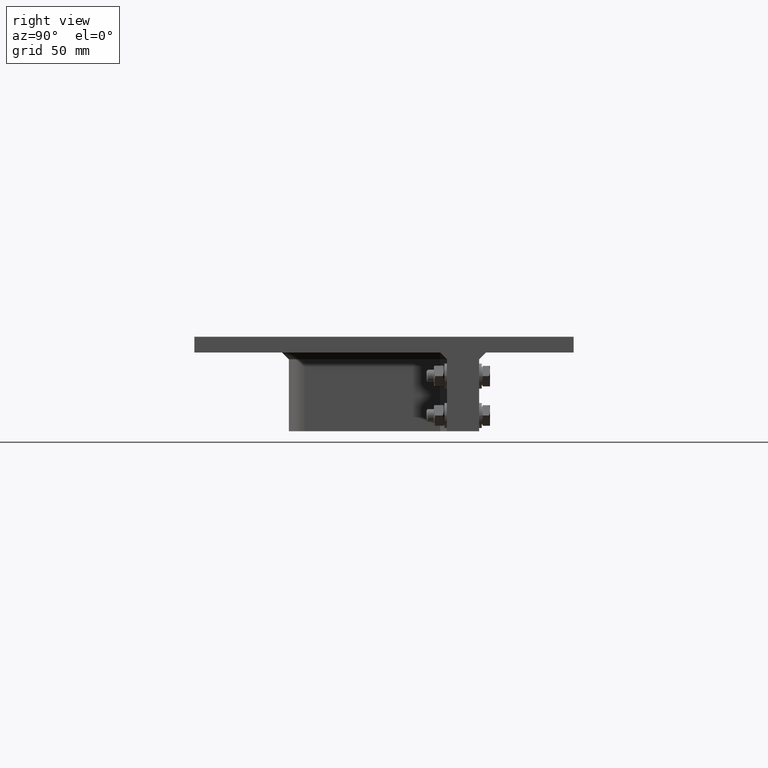
[diagram: clean part render]
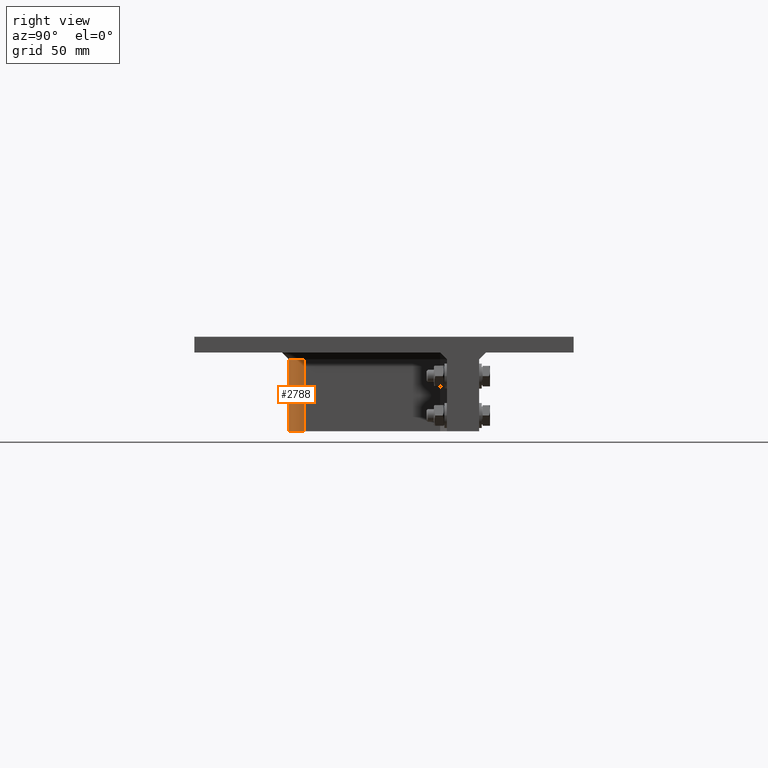
[diagram: same view with one face highlighted and labeled with its STEP entity id]
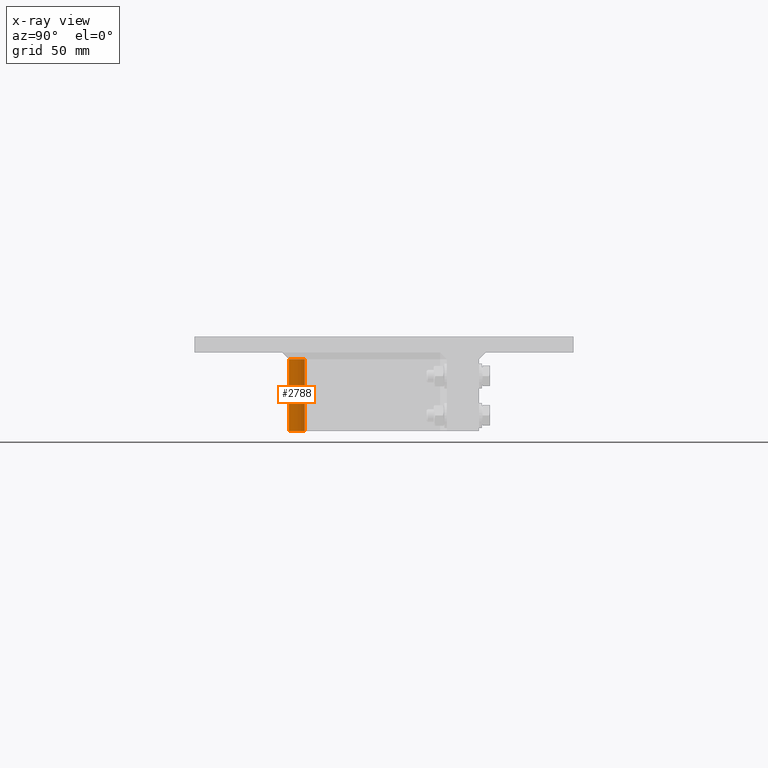
[diagram: x-ray of the same camera — body ghosted, the highlighted face saturated]
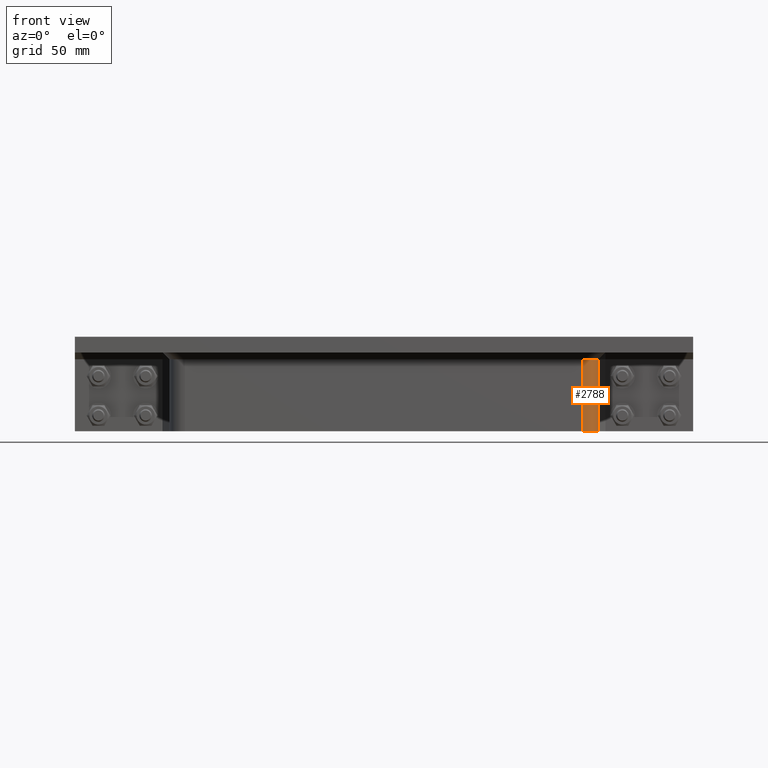
[diagram: same view with one face highlighted and labeled with its STEP entity id]
A machine part, right view. The second image highlights one B-rep face of the part: STEP entity #2788.
The next image is the same camera in x-ray: the body ghosted, the highlighted face saturated — about 0% of this face is hidden behind the body in this view.
A second angle (front view) of the same face is appended — the face is thin or edge-on in the first view.
In plain terms, the highlighted cylindrical surface (edge-blend (fillet) strip) has radius 10 mm, axis along (0, 0, -1).
Its self-contained STEP definition (entity closure, byte-faithful):
#186=CYLINDRICAL_SURFACE('',#3199,10.);
#305=CIRCLE('',#3122,10.);
#335=CIRCLE('',#3176,10.);
#493=FACE_OUTER_BOUND('',#680,.T.);
#680=EDGE_LOOP('',(#2147,#2148,#2149,#2150));
#939=LINE('',#4525,#1158);
#940=LINE('',#4527,#1159);
#1158=VECTOR('',#3685,10.);
#1159=VECTOR('',#3688,10.);
#1297=VERTEX_POINT('',#4293);
#1299=VERTEX_POINT('',#4299);
#1356=VERTEX_POINT('',#4461);
#1357=VERTEX_POINT('',#4463);
#1545=EDGE_CURVE('',#1299,#1297,#305,.T.);
#1626=EDGE_CURVE('',#1356,#1357,#335,.T.);
#1658=EDGE_CURVE('',#1297,#1356,#939,.T.);
#1659=EDGE_CURVE('',#1299,#1357,#940,.T.);
#2147=ORIENTED_EDGE('',*,*,#1545,.F.);
#2148=ORIENTED_EDGE('',*,*,#1659,.T.);
#2149=ORIENTED_EDGE('',*,*,#1626,.F.);
#2150=ORIENTED_EDGE('',*,*,#1658,.F.);
#2788=ADVANCED_FACE('',(#493),#186,.T.);
#3122=AXIS2_PLACEMENT_3D('',#4301,#3456,#3457);
#3176=AXIS2_PLACEMENT_3D('',#4464,#3615,#3616);
#3199=AXIS2_PLACEMENT_3D('',#4526,#3686,#3687);
#3456=DIRECTION('center_axis',(0.,0.,1.));
#3457=DIRECTION('ref_axis',(0.,-1.,0.));
#3615=DIRECTION('center_axis',(0.,0.,-1.));
#3616=DIRECTION('ref_axis',(0.,-1.,0.));
#3685=DIRECTION('',(0.,0.,-1.));
#3686=DIRECTION('center_axis',(0.,0.,-1.));
#3687=DIRECTION('ref_axis',(0.,-1.,0.));
#3688=DIRECTION('',(0.,0.,-1.));
#4293=CARTESIAN_POINT('',(136.5,-50.4999999999999,-14.3));
#4299=CARTESIAN_POINT('',(126.5,-60.4999999999999,-14.3));
#4301=CARTESIAN_POINT('Origin',(126.5,-50.4999999999999,-14.3));
#4461=CARTESIAN_POINT('',(136.5,-50.4999999999999,-60.));
#4463=CARTESIAN_POINT('',(126.5,-60.4999999999999,-60.));
#4464=CARTESIAN_POINT('Origin',(126.5,-50.4999999999999,-60.));
#4525=CARTESIAN_POINT('',(136.5,-50.4999999999999,0.));
#4526=CARTESIAN_POINT('Origin',(126.5,-50.4999999999999,0.));
#4527=CARTESIAN_POINT('',(126.5,-60.4999999999999,0.));